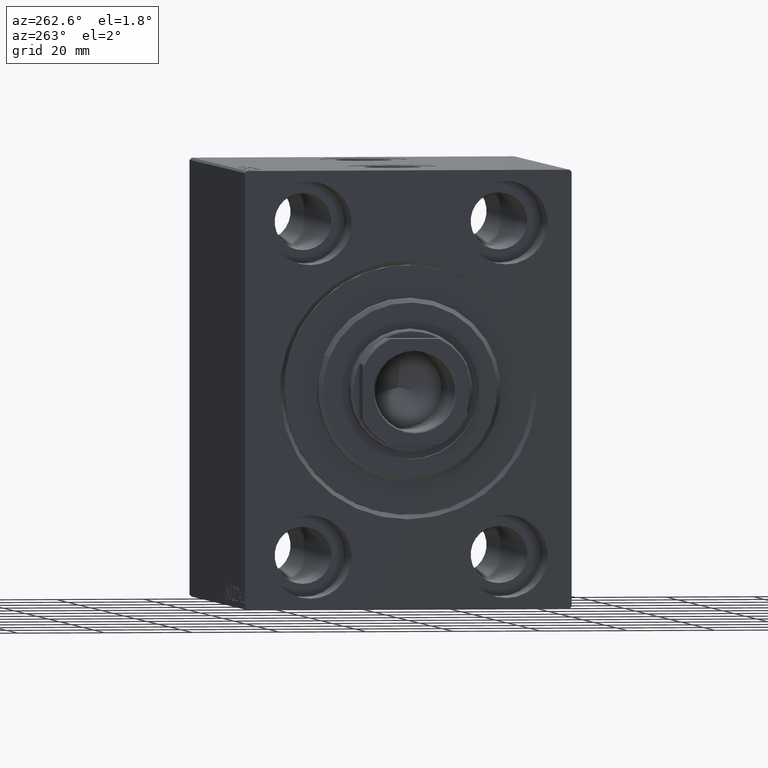
[diagram: clean part render]
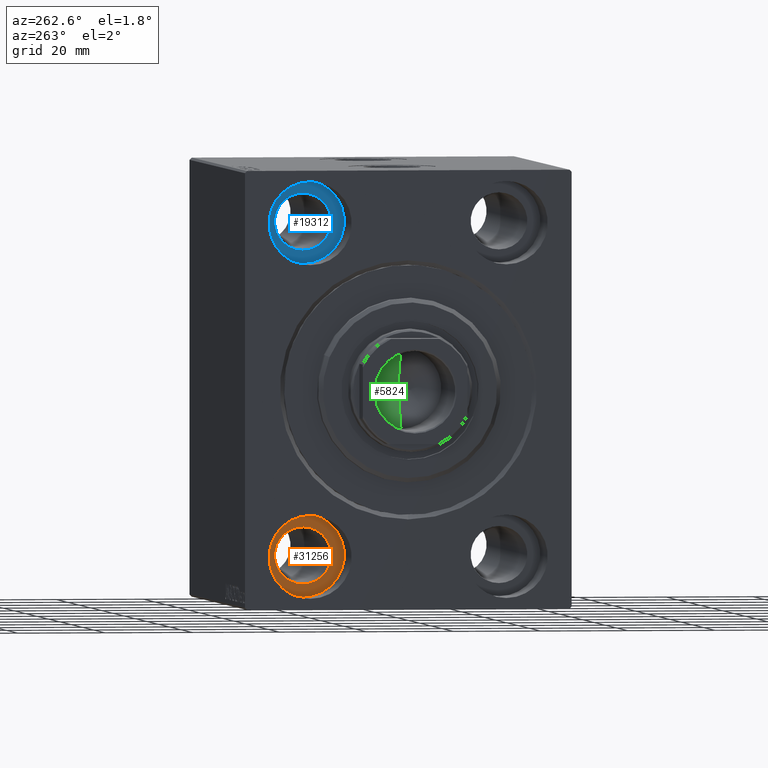
[diagram: same view with three faces highlighted in distinct colors, each labeled with its STEP entity id]
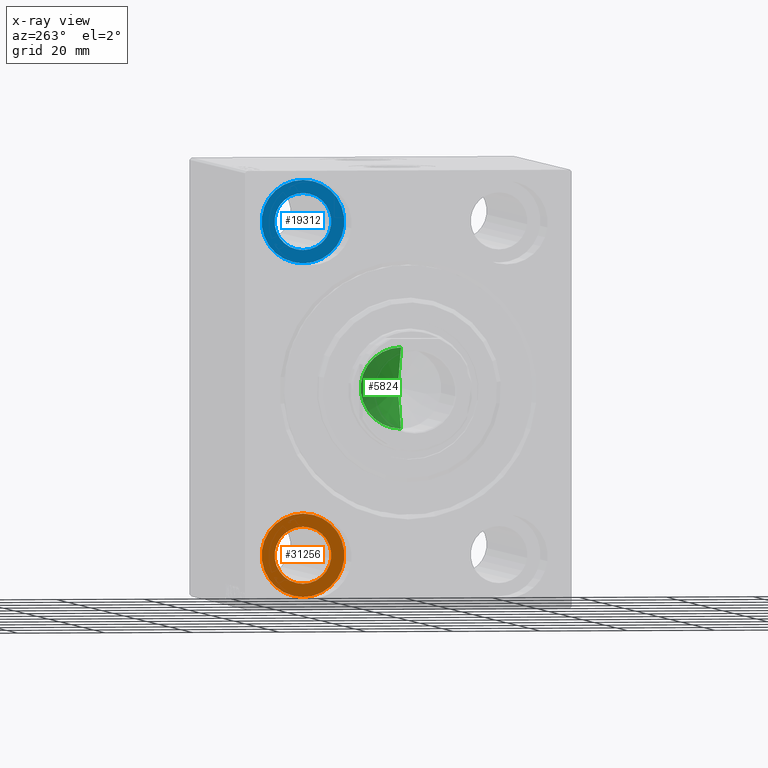
[diagram: x-ray of the same camera — body ghosted, the three highlighted faces saturated]
A machine part, auxiliary view with three faces highlighted in distinct colors.
The next image is the same camera in x-ray (body ghosted, the three faces saturated) — at least one of them is partly hidden behind the body in this view.
Their STEP definitions:

[orange] entity #31256 — the highlighted planar face has unit normal (-1, 0, 0).
#204 = CARTESIAN_POINT ( 'NONE',  ( 12.99999999999999822, 22.49999999999999645, -37.99999999999999289 ) ) ;
#209 = AXIS2_PLACEMENT_3D ( 'NONE', #12207, #18897, #39622 ) ;
#424 = DIRECTION ( 'NONE',  ( 0.000000000000000000, 0.000000000000000000, 1.000000000000000000 ) ) ;
#707 = EDGE_LOOP ( 'NONE', ( #28203, #36612 ) ) ;
#1288 = CARTESIAN_POINT ( 'NONE',  ( 12.99999999999999822, 22.49999999999999645, -44.49999999999999289 ) ) ;
#3247 = CARTESIAN_POINT ( 'NONE',  ( 13.00000000000000000, 22.49999999999999645, -37.99999999999999289 ) ) ;
#4220 = VERTEX_POINT ( 'NONE', #39467 ) ;
#7475 = EDGE_CURVE ( 'NONE', #41593, #18455, #37597, .T. ) ;
#8330 = AXIS2_PLACEMENT_3D ( 'NONE', #3247, #30455, #38462 ) ;
#8862 = EDGE_LOOP ( 'NONE', ( #33923, #40608 ) ) ;
#10413 = DIRECTION ( 'NONE',  ( 0.000000000000000000, 0.000000000000000000, 1.000000000000000000 ) ) ;
#12207 = CARTESIAN_POINT ( 'NONE',  ( 13.00000000000000000, 22.49999999999999645, -37.99999999999999289 ) ) ;
#12575 = DIRECTION ( 'NONE',  ( -1.000000000000000000, 0.000000000000000000, 0.000000000000000000 ) ) ;
#12725 = CIRCLE ( 'NONE', #24136, 9.500000000000001776 ) ;
#13549 = DIRECTION ( 'NONE',  ( -1.000000000000000000, 0.000000000000000000, 0.000000000000000000 ) ) ;
#13799 = DIRECTION ( 'NONE',  ( -1.000000000000000000, 0.000000000000000000, 0.000000000000000000 ) ) ;
#16536 = AXIS2_PLACEMENT_3D ( 'NONE', #27375, #13549, #10413 ) ;
#17117 = CARTESIAN_POINT ( 'NONE',  ( 13.00000000000000000, 22.49999999999999645, -47.49999999999999289 ) ) ;
#18455 = VERTEX_POINT ( 'NONE', #1288 ) ;
#18897 = DIRECTION ( 'NONE',  ( -1.000000000000000000, 0.000000000000000000, 0.000000000000000000 ) ) ;
#20197 = FACE_OUTER_BOUND ( 'NONE', #8862, .T. ) ;
#21290 = CARTESIAN_POINT ( 'NONE',  ( 12.99999999999999822, 22.49999999999999645, -31.49999999999999289 ) ) ;
#23360 = AXIS2_PLACEMENT_3D ( 'NONE', #204, #13799, #424 ) ;
#24136 = AXIS2_PLACEMENT_3D ( 'NONE', #43120, #12575, #26181 ) ;
#24788 = EDGE_CURVE ( 'NONE', #18455, #41593, #36488, .T. ) ;
#26002 = EDGE_CURVE ( 'NONE', #4220, #28716, #43652, .T. ) ;
#26181 = DIRECTION ( 'NONE',  ( 0.000000000000000000, 0.000000000000000000, 1.000000000000000000 ) ) ;
#27375 = CARTESIAN_POINT ( 'NONE',  ( 12.99999999999999822, 22.49999999999999645, -37.99999999999999289 ) ) ;
#28203 = ORIENTED_EDGE ( 'NONE', *, *, #7475, .F. ) ;
#28716 = VERTEX_POINT ( 'NONE', #17117 ) ;
#30455 = DIRECTION ( 'NONE',  ( -1.000000000000000000, 0.000000000000000000, 0.000000000000000000 ) ) ;
#31256 = ADVANCED_FACE ( 'NONE', ( #33589, #20197 ), #33801, .T. ) ;
#33589 = FACE_BOUND ( 'NONE', #707, .T. ) ;
#33801 = PLANE ( 'NONE',  #8330 ) ;
#33923 = ORIENTED_EDGE ( 'NONE', *, *, #26002, .T. ) ;
#36271 = EDGE_CURVE ( 'NONE', #28716, #4220, #12725, .T. ) ;
#36488 = CIRCLE ( 'NONE', #16536, 6.499999999999999112 ) ;
#36612 = ORIENTED_EDGE ( 'NONE', *, *, #24788, .F. ) ;
#37597 = CIRCLE ( 'NONE', #23360, 6.499999999999999112 ) ;
#38462 = DIRECTION ( 'NONE',  ( 0.000000000000000000, 0.000000000000000000, 1.000000000000000000 ) ) ;
#39467 = CARTESIAN_POINT ( 'NONE',  ( 13.00000000000000000, 22.49999999999999645, -28.49999999999998934 ) ) ;
#39622 = DIRECTION ( 'NONE',  ( 0.000000000000000000, 0.000000000000000000, 1.000000000000000000 ) ) ;
#40608 = ORIENTED_EDGE ( 'NONE', *, *, #36271, .T. ) ;
#41593 = VERTEX_POINT ( 'NONE', #21290 ) ;
#43120 = CARTESIAN_POINT ( 'NONE',  ( 13.00000000000000000, 22.49999999999999645, -37.99999999999999289 ) ) ;
#43652 = CIRCLE ( 'NONE', #209, 9.500000000000001776 ) ;

[blue] entity #19312 — the highlighted planar face has unit normal (-1, 0, 0).
#1315 = AXIS2_PLACEMENT_3D ( 'NONE', #15633, #4945, #29248 ) ;
#2832 = DIRECTION ( 'NONE',  ( 0.000000000000000000, 0.000000000000000000, 1.000000000000000000 ) ) ;
#4316 = AXIS2_PLACEMENT_3D ( 'NONE', #25372, #25160, #4642 ) ;
#4642 = DIRECTION ( 'NONE',  ( 0.000000000000000000, 0.000000000000000000, 1.000000000000000000 ) ) ;
#4945 = DIRECTION ( 'NONE',  ( -1.000000000000000000, 0.000000000000000000, 0.000000000000000000 ) ) ;
#5716 = CIRCLE ( 'NONE', #13542, 6.499999999999999112 ) ;
#8631 = EDGE_CURVE ( 'NONE', #35927, #26330, #17685, .T. ) ;
#8923 = ORIENTED_EDGE ( 'NONE', *, *, #8631, .T. ) ;
#11110 = FACE_OUTER_BOUND ( 'NONE', #16429, .T. ) ;
#11324 = CARTESIAN_POINT ( 'NONE',  ( 12.99999999999999822, 22.50000000000000355, 31.49999999999999289 ) ) ;
#11583 = CARTESIAN_POINT ( 'NONE',  ( 12.99999999999999822, 22.50000000000000355, 44.49999999999999289 ) ) ;
#11766 = FACE_BOUND ( 'NONE', #38771, .T. ) ;
#13542 = AXIS2_PLACEMENT_3D ( 'NONE', #13962, #30708, #2832 ) ;
#13717 = EDGE_CURVE ( 'NONE', #25880, #33060, #5716, .T. ) ;
#13962 = CARTESIAN_POINT ( 'NONE',  ( 12.99999999999999822, 22.50000000000000355, 37.99999999999999289 ) ) ;
#14844 = AXIS2_PLACEMENT_3D ( 'NONE', #31149, #41162, #17758 ) ;
#15598 = DIRECTION ( 'NONE',  ( -1.000000000000000000, 0.000000000000000000, 0.000000000000000000 ) ) ;
#15633 = CARTESIAN_POINT ( 'NONE',  ( 12.99999999999999822, 22.50000000000000355, 37.99999999999999289 ) ) ;
#16429 = EDGE_LOOP ( 'NONE', ( #24427, #8923 ) ) ;
#17685 = CIRCLE ( 'NONE', #14844, 9.500000000000001776 ) ;
#17758 = DIRECTION ( 'NONE',  ( 0.000000000000000000, 0.000000000000000000, 1.000000000000000000 ) ) ;
#19312 = ADVANCED_FACE ( 'NONE', ( #11766, #11110 ), #24510, .T. ) ;
#22748 = DIRECTION ( 'NONE',  ( 0.000000000000000000, 0.000000000000000000, 1.000000000000000000 ) ) ;
#22954 = EDGE_CURVE ( 'NONE', #26330, #35927, #27911, .T. ) ;
#24427 = ORIENTED_EDGE ( 'NONE', *, *, #22954, .T. ) ;
#24510 = PLANE ( 'NONE',  #4316 ) ;
#25160 = DIRECTION ( 'NONE',  ( -1.000000000000000000, 0.000000000000000000, 0.000000000000000000 ) ) ;
#25372 = CARTESIAN_POINT ( 'NONE',  ( 13.00000000000000000, 0.000000000000000000, 0.000000000000000000 ) ) ;
#25880 = VERTEX_POINT ( 'NONE', #11324 ) ;
#26330 = VERTEX_POINT ( 'NONE', #37049 ) ;
#27911 = CIRCLE ( 'NONE', #32897, 9.500000000000001776 ) ;
#29248 = DIRECTION ( 'NONE',  ( 0.000000000000000000, 0.000000000000000000, 1.000000000000000000 ) ) ;
#30708 = DIRECTION ( 'NONE',  ( -1.000000000000000000, 0.000000000000000000, 0.000000000000000000 ) ) ;
#31149 = CARTESIAN_POINT ( 'NONE',  ( 13.00000000000000000, 22.50000000000000355, 37.99999999999999289 ) ) ;
#32897 = AXIS2_PLACEMENT_3D ( 'NONE', #40931, #15598, #22748 ) ;
#33060 = VERTEX_POINT ( 'NONE', #11583 ) ;
#34714 = EDGE_CURVE ( 'NONE', #33060, #25880, #37610, .T. ) ;
#35385 = CARTESIAN_POINT ( 'NONE',  ( 13.00000000000000000, 22.50000000000000355, 28.49999999999998934 ) ) ;
#35927 = VERTEX_POINT ( 'NONE', #35385 ) ;
#36233 = ORIENTED_EDGE ( 'NONE', *, *, #34714, .F. ) ;
#37049 = CARTESIAN_POINT ( 'NONE',  ( 13.00000000000000000, 22.50000000000000355, 47.49999999999999289 ) ) ;
#37610 = CIRCLE ( 'NONE', #1315, 6.499999999999999112 ) ;
#38771 = EDGE_LOOP ( 'NONE', ( #36233, #41829 ) ) ;
#40931 = CARTESIAN_POINT ( 'NONE',  ( 13.00000000000000000, 22.50000000000000355, 37.99999999999999289 ) ) ;
#41162 = DIRECTION ( 'NONE',  ( -1.000000000000000000, 0.000000000000000000, 0.000000000000000000 ) ) ;
#41829 = ORIENTED_EDGE ( 'NONE', *, *, #13717, .F. ) ;

[green] entity #5824 — the highlighted conical surface has half-angle 59 deg.
#331 = EDGE_CURVE ( 'NONE', #28334, #28342, #7356, .T. ) ;
#1735 = DIRECTION ( 'NONE',  ( 0.8571673007021113344, 0.000000000000000000, 0.5150380749100558209 ) ) ;
#5404 = ORIENTED_EDGE ( 'NONE', *, *, #26821, .T. ) ;
#5824 = ADVANCED_FACE ( 'NONE', ( #6608 ), #29010, .F. ) ;
#6608 = FACE_OUTER_BOUND ( 'NONE', #39104, .T. ) ;
#7356 = LINE ( 'NONE', #27875, #21865 ) ;
#12172 = EDGE_CURVE ( 'NONE', #27738, #28342, #22046, .T. ) ;
#15052 = DIRECTION ( 'NONE',  ( 1.000000000000000000, 0.000000000000000000, 0.000000000000000000 ) ) ;
#20744 = DIRECTION ( 'NONE',  ( -0.8571673007021113344, 1.049727191138617463E-16, 0.5150380749100558209 ) ) ;
#21865 = VECTOR ( 'NONE', #20744, 1000.000000000000000 ) ;
#22046 = CIRCLE ( 'NONE', #33446, 9.249999999999994671 ) ;
#23791 = CARTESIAN_POINT ( 'NONE',  ( 0.000000000000000000, 0.000000000000000000, 71.00000000000001421 ) ) ;
#24022 = CARTESIAN_POINT ( 'NONE',  ( 9.249999999999994671, 0.000000000000000000, 71.00000000000001421 ) ) ;
#24845 = CARTESIAN_POINT ( 'NONE',  ( -9.249999999999994671, 1.132798289211300909E-15, 71.00000000000001421 ) ) ;
#25452 = AXIS2_PLACEMENT_3D ( 'NONE', #23791, #37583, #30917 ) ;
#26036 = CARTESIAN_POINT ( 'NONE',  ( 9.249999999999994671, 0.000000000000000000, 71.00000000000001421 ) ) ;
#26821 = EDGE_CURVE ( 'NONE', #28334, #27738, #32730, .T. ) ;
#27738 = VERTEX_POINT ( 'NONE', #24022 ) ;
#27875 = CARTESIAN_POINT ( 'NONE',  ( -9.249999999999994671, 1.132798289211300909E-15, 71.00000000000001421 ) ) ;
#28012 = DIRECTION ( 'NONE',  ( -0.000000000000000000, -0.000000000000000000, 1.000000000000000000 ) ) ;
#28334 = VERTEX_POINT ( 'NONE', #28403 ) ;
#28342 = VERTEX_POINT ( 'NONE', #24845 ) ;
#28403 = CARTESIAN_POINT ( 'NONE',  ( -6.793016015247754405E-15, 0.000000000000000000, 65.44203927399505005 ) ) ;
#29010 = CONICAL_SURFACE ( 'NONE', #25452, 9.249999999999994671, 1.029744258676652535 ) ;
#30917 = DIRECTION ( 'NONE',  ( 1.000000000000000000, 0.000000000000000000, 0.000000000000000000 ) ) ;
#32730 = LINE ( 'NONE', #26036, #32998 ) ;
#32793 = ORIENTED_EDGE ( 'NONE', *, *, #331, .F. ) ;
#32998 = VECTOR ( 'NONE', #1735, 1000.000000000000000 ) ;
#33446 = AXIS2_PLACEMENT_3D ( 'NONE', #35555, #28012, #15052 ) ;
#34788 = ORIENTED_EDGE ( 'NONE', *, *, #12172, .T. ) ;
#35555 = CARTESIAN_POINT ( 'NONE',  ( 0.000000000000000000, 0.000000000000000000, 71.00000000000001421 ) ) ;
#37583 = DIRECTION ( 'NONE',  ( -0.000000000000000000, -0.000000000000000000, 1.000000000000000000 ) ) ;
#39104 = EDGE_LOOP ( 'NONE', ( #32793, #5404, #34788 ) ) ;